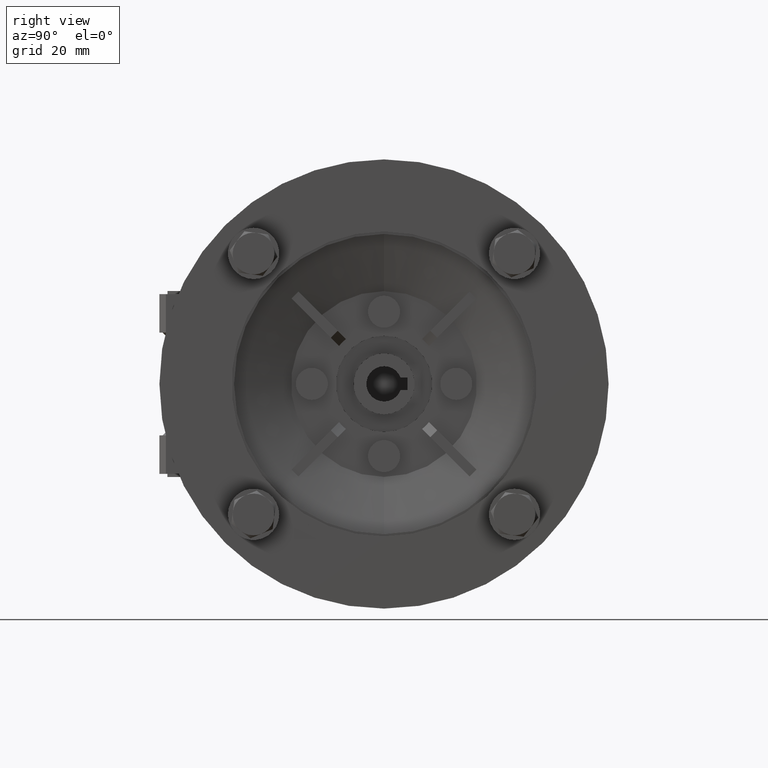
[diagram: clean part render]
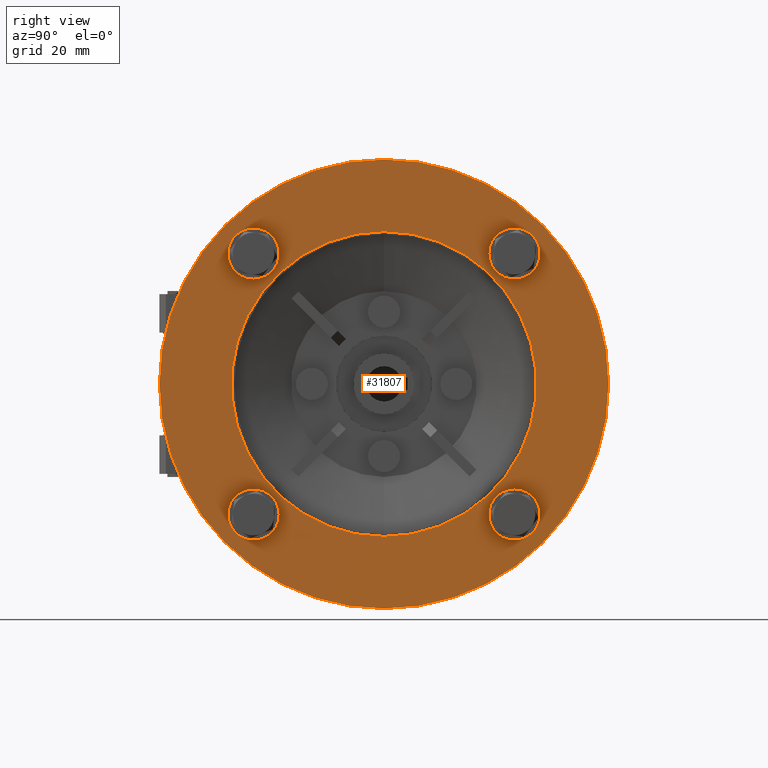
[diagram: same view with one face highlighted and labeled with its STEP entity id]
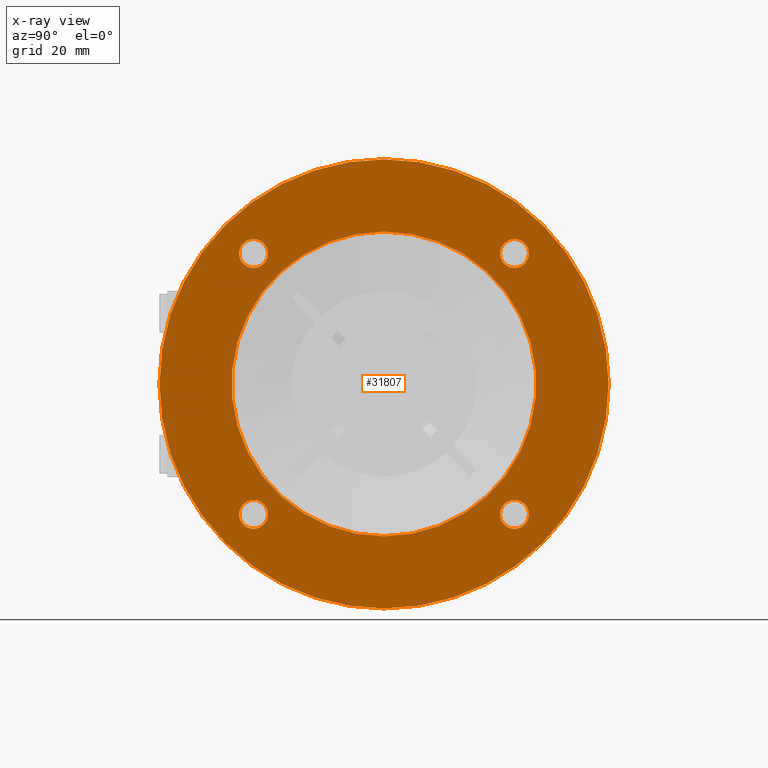
[diagram: x-ray of the same camera — body ghosted, the highlighted face saturated]
A machine part, right view. The second image highlights one B-rep face of the part: STEP entity #31807.
The next image is the same camera in x-ray: the body ghosted, the highlighted face saturated — about 0% of this face is hidden behind the body in this view.
In plain terms, the highlighted planar face has unit normal (-1, 0, 0).
Its self-contained STEP definition (entity closure, byte-faithful):
#434 = AXIS2_PLACEMENT_3D ( 'NONE', #18665, #1130, #1300 ) ;
#554 = DIRECTION ( 'NONE',  ( 1.000000000000000000, 0.000000000000000000, 0.000000000000000000 ) ) ;
#1130 = DIRECTION ( 'NONE',  ( 1.000000000000000000, 0.000000000000000000, 0.000000000000000000 ) ) ;
#1300 = DIRECTION ( 'NONE',  ( 0.000000000000000000, 0.000000000000000000, 1.000000000000000000 ) ) ;
#1329 = EDGE_CURVE ( 'NONE', #21397, #19005, #31038, .T. ) ;
#1537 = ORIENTED_EDGE ( 'NONE', *, *, #15002, .F. ) ;
#1831 = AXIS2_PLACEMENT_3D ( 'NONE', #13651, #14128, #28397 ) ;
#2310 = CARTESIAN_POINT ( 'NONE',  ( 55.00000000000000711, 70.65863991822648416, 40.65863991822649837 ) ) ;
#2782 = DIRECTION ( 'NONE',  ( 0.000000000000000000, 0.000000000000000000, 1.000000000000000000 ) ) ;
#3097 = ORIENTED_EDGE ( 'NONE', *, *, #27246, .F. ) ;
#3099 = ORIENTED_EDGE ( 'NONE', *, *, #21134, .F. ) ;
#3166 = AXIS2_PLACEMENT_3D ( 'NONE', #18507, #26451, #16246 ) ;
#3436 = DIRECTION ( 'NONE',  ( 0.000000000000000000, 0.000000000000000000, 1.000000000000000000 ) ) ;
#4056 = ORIENTED_EDGE ( 'NONE', *, *, #14325, .F. ) ;
#4446 = CARTESIAN_POINT ( 'NONE',  ( 55.00000000000000711, -10.65863991822650014, -36.15863991822649837 ) ) ;
#4650 = ORIENTED_EDGE ( 'NONE', *, *, #1329, .F. ) ;
#4712 = CARTESIAN_POINT ( 'NONE',  ( 55.00000000000000711, 30.00000000000000000, 0.000000000000000000 ) ) ;
#4901 = DIRECTION ( 'NONE',  ( 1.000000000000000000, 0.000000000000000000, 0.000000000000000000 ) ) ;
#5037 = DIRECTION ( 'NONE',  ( 1.000000000000000000, 0.000000000000000000, 0.000000000000000000 ) ) ;
#5457 = VERTEX_POINT ( 'NONE', #29016 ) ;
#5716 = DIRECTION ( 'NONE',  ( 0.000000000000000000, 0.000000000000000000, 1.000000000000000000 ) ) ;
#5776 = VERTEX_POINT ( 'NONE', #12930 ) ;
#6034 = FACE_OUTER_BOUND ( 'NONE', #11953, .T. ) ;
#6335 = VERTEX_POINT ( 'NONE', #29076 ) ;
#6854 = ORIENTED_EDGE ( 'NONE', *, *, #11203, .F. ) ;
#7069 = CIRCLE ( 'NONE', #23151, 4.499999999999997335 ) ;
#7190 = EDGE_CURVE ( 'NONE', #19005, #21397, #23393, .T. ) ;
#7370 = AXIS2_PLACEMENT_3D ( 'NONE', #4712, #5037, #7473 ) ;
#7473 = DIRECTION ( 'NONE',  ( 0.000000000000000000, 0.000000000000000000, 1.000000000000000000 ) ) ;
#8001 = FACE_BOUND ( 'NONE', #18112, .T. ) ;
#8236 = EDGE_LOOP ( 'NONE', ( #3099, #27238 ) ) ;
#8255 = DIRECTION ( 'NONE',  ( 0.000000000000000000, 0.000000000000000000, 1.000000000000000000 ) ) ;
#8404 = VERTEX_POINT ( 'NONE', #30800 ) ;
#9150 = ORIENTED_EDGE ( 'NONE', *, *, #25068, .F. ) ;
#9804 = CARTESIAN_POINT ( 'NONE',  ( 55.00000000000000711, 30.00000000000000000, 0.000000000000000000 ) ) ;
#10006 = CIRCLE ( 'NONE', #14171, 70.00000000000000000 ) ;
#10019 = VERTEX_POINT ( 'NONE', #17331 ) ;
#10323 = CIRCLE ( 'NONE', #28465, 4.499999999999997335 ) ;
#10719 = CARTESIAN_POINT ( 'NONE',  ( 55.00000000000000711, -10.65863991822650014, 36.15863991822649837 ) ) ;
#10929 = DIRECTION ( 'NONE',  ( 1.000000000000000000, 0.000000000000000000, 0.000000000000000000 ) ) ;
#11203 = EDGE_CURVE ( 'NONE', #29980, #5457, #24642, .T. ) ;
#11214 = CARTESIAN_POINT ( 'NONE',  ( 55.00000000000000711, -10.65863991822650014, 40.65863991822649837 ) ) ;
#11953 = EDGE_LOOP ( 'NONE', ( #1537, #6854 ) ) ;
#12029 = ORIENTED_EDGE ( 'NONE', *, *, #23870, .F. ) ;
#12227 = EDGE_CURVE ( 'NONE', #8404, #10019, #25145, .T. ) ;
#12248 = DIRECTION ( 'NONE',  ( -1.000000000000000000, 0.000000000000000000, 0.000000000000000000 ) ) ;
#12930 = CARTESIAN_POINT ( 'NONE',  ( 55.00000000000000711, 70.65863991822648416, 36.15863991822649837 ) ) ;
#12932 = CARTESIAN_POINT ( 'NONE',  ( 55.00000000000000711, 70.65863991822648416, -40.65863991822649837 ) ) ;
#13342 = CIRCLE ( 'NONE', #31453, 4.499999999999997335 ) ;
#13367 = FACE_BOUND ( 'NONE', #28595, .T. ) ;
#13651 = CARTESIAN_POINT ( 'NONE',  ( 55.00000000000000711, 30.00000000000000000, 0.000000000000000000 ) ) ;
#13680 = CARTESIAN_POINT ( 'NONE',  ( 55.00000000000000711, 100.0000000000000000, 0.000000000000000000 ) ) ;
#14128 = DIRECTION ( 'NONE',  ( -1.000000000000000000, 0.000000000000000000, 0.000000000000000000 ) ) ;
#14171 = AXIS2_PLACEMENT_3D ( 'NONE', #9804, #12248, #22124 ) ;
#14325 = EDGE_CURVE ( 'NONE', #10019, #8404, #15146, .T. ) ;
#15002 = EDGE_CURVE ( 'NONE', #5457, #29980, #10006, .T. ) ;
#15146 = CIRCLE ( 'NONE', #7370, 47.50000000000000000 ) ;
#15266 = CARTESIAN_POINT ( 'NONE',  ( 55.00000000000000711, 30.00000000000000711, -70.00000000000000000 ) ) ;
#15371 = VERTEX_POINT ( 'NONE', #10719 ) ;
#15757 = AXIS2_PLACEMENT_3D ( 'NONE', #13680, #28099, #5716 ) ;
#16031 = DIRECTION ( 'NONE',  ( 1.000000000000000000, 0.000000000000000000, 0.000000000000000000 ) ) ;
#16229 = CIRCLE ( 'NONE', #21407, 4.499999999999997335 ) ;
#16246 = DIRECTION ( 'NONE',  ( 0.000000000000000000, 0.000000000000000000, 1.000000000000000000 ) ) ;
#16546 = CARTESIAN_POINT ( 'NONE',  ( 55.00000000000000711, -10.65863991822650014, 45.15863991822649837 ) ) ;
#16827 = CARTESIAN_POINT ( 'NONE',  ( 55.00000000000000711, -10.65863991822650014, 40.65863991822649837 ) ) ;
#17331 = CARTESIAN_POINT ( 'NONE',  ( 55.00000000000000711, 30.00000000000000711, -47.50000000000000000 ) ) ;
#17611 = DIRECTION ( 'NONE',  ( 0.000000000000000000, 0.000000000000000000, 1.000000000000000000 ) ) ;
#18112 = EDGE_LOOP ( 'NONE', ( #9150, #19437 ) ) ;
#18507 = CARTESIAN_POINT ( 'NONE',  ( 55.00000000000000711, -10.65863991822650014, -40.65863991822649837 ) ) ;
#18665 = CARTESIAN_POINT ( 'NONE',  ( 55.00000000000000711, -10.65863991822650014, -40.65863991822649837 ) ) ;
#19005 = VERTEX_POINT ( 'NONE', #19359 ) ;
#19359 = CARTESIAN_POINT ( 'NONE',  ( 55.00000000000000711, -10.65863991822650014, -45.15863991822649837 ) ) ;
#19437 = ORIENTED_EDGE ( 'NONE', *, *, #23642, .F. ) ;
#19736 = EDGE_LOOP ( 'NONE', ( #12029, #3097 ) ) ;
#19756 = DIRECTION ( 'NONE',  ( 1.000000000000000000, 0.000000000000000000, 0.000000000000000000 ) ) ;
#20651 = FACE_BOUND ( 'NONE', #31333, .T. ) ;
#21089 = CIRCLE ( 'NONE', #23152, 4.499999999999997335 ) ;
#21134 = EDGE_CURVE ( 'NONE', #6335, #25220, #24664, .T. ) ;
#21397 = VERTEX_POINT ( 'NONE', #4446 ) ;
#21407 = AXIS2_PLACEMENT_3D ( 'NONE', #23491, #16031, #8255 ) ;
#21525 = AXIS2_PLACEMENT_3D ( 'NONE', #21580, #10929, #3436 ) ;
#21580 = CARTESIAN_POINT ( 'NONE',  ( 55.00000000000000711, 30.00000000000000000, 0.000000000000000000 ) ) ;
#21840 = DIRECTION ( 'NONE',  ( 1.000000000000000000, 0.000000000000000000, 0.000000000000000000 ) ) ;
#22124 = DIRECTION ( 'NONE',  ( 0.000000000000000000, 0.000000000000000000, 1.000000000000000000 ) ) ;
#22320 = VERTEX_POINT ( 'NONE', #23332 ) ;
#23062 = ORIENTED_EDGE ( 'NONE', *, *, #12227, .F. ) ;
#23151 = AXIS2_PLACEMENT_3D ( 'NONE', #2310, #4901, #2782 ) ;
#23152 = AXIS2_PLACEMENT_3D ( 'NONE', #30681, #30353, #28400 ) ;
#23332 = CARTESIAN_POINT ( 'NONE',  ( 55.00000000000000711, 70.65863991822648416, 45.15863991822649837 ) ) ;
#23393 = CIRCLE ( 'NONE', #3166, 4.499999999999997335 ) ;
#23491 = CARTESIAN_POINT ( 'NONE',  ( 55.00000000000000711, 70.65863991822648416, -40.65863991822649837 ) ) ;
#23642 = EDGE_CURVE ( 'NONE', #5776, #22320, #21089, .T. ) ;
#23870 = EDGE_CURVE ( 'NONE', #25694, #15371, #13342, .T. ) ;
#24431 = DIRECTION ( 'NONE',  ( 0.000000000000000000, 0.000000000000000000, 1.000000000000000000 ) ) ;
#24642 = CIRCLE ( 'NONE', #1831, 70.00000000000000000 ) ;
#24664 = CIRCLE ( 'NONE', #27254, 4.499999999999997335 ) ;
#25068 = EDGE_CURVE ( 'NONE', #22320, #5776, #7069, .T. ) ;
#25145 = CIRCLE ( 'NONE', #21525, 47.50000000000000000 ) ;
#25220 = VERTEX_POINT ( 'NONE', #28436 ) ;
#25694 = VERTEX_POINT ( 'NONE', #16546 ) ;
#25835 = FACE_BOUND ( 'NONE', #19736, .T. ) ;
#26451 = DIRECTION ( 'NONE',  ( 1.000000000000000000, 0.000000000000000000, 0.000000000000000000 ) ) ;
#27238 = ORIENTED_EDGE ( 'NONE', *, *, #29403, .F. ) ;
#27246 = EDGE_CURVE ( 'NONE', #15371, #25694, #10323, .T. ) ;
#27254 = AXIS2_PLACEMENT_3D ( 'NONE', #12932, #554, #17611 ) ;
#28088 = ORIENTED_EDGE ( 'NONE', *, *, #7190, .F. ) ;
#28099 = DIRECTION ( 'NONE',  ( -1.000000000000000000, 0.000000000000000000, 0.000000000000000000 ) ) ;
#28397 = DIRECTION ( 'NONE',  ( 0.000000000000000000, 0.000000000000000000, 1.000000000000000000 ) ) ;
#28400 = DIRECTION ( 'NONE',  ( 0.000000000000000000, 0.000000000000000000, 1.000000000000000000 ) ) ;
#28436 = CARTESIAN_POINT ( 'NONE',  ( 55.00000000000000711, 70.65863991822648416, -45.15863991822649837 ) ) ;
#28465 = AXIS2_PLACEMENT_3D ( 'NONE', #16827, #21840, #24431 ) ;
#28595 = EDGE_LOOP ( 'NONE', ( #23062, #4056 ) ) ;
#29016 = CARTESIAN_POINT ( 'NONE',  ( 55.00000000000000711, 30.00000000000000000, 70.00000000000000000 ) ) ;
#29076 = CARTESIAN_POINT ( 'NONE',  ( 55.00000000000000711, 70.65863991822648416, -36.15863991822649837 ) ) ;
#29403 = EDGE_CURVE ( 'NONE', #25220, #6335, #16229, .T. ) ;
#29659 = DIRECTION ( 'NONE',  ( 0.000000000000000000, 0.000000000000000000, 1.000000000000000000 ) ) ;
#29980 = VERTEX_POINT ( 'NONE', #15266 ) ;
#30353 = DIRECTION ( 'NONE',  ( 1.000000000000000000, 0.000000000000000000, 0.000000000000000000 ) ) ;
#30546 = FACE_BOUND ( 'NONE', #8236, .T. ) ;
#30681 = CARTESIAN_POINT ( 'NONE',  ( 55.00000000000000711, 70.65863991822648416, 40.65863991822649837 ) ) ;
#30800 = CARTESIAN_POINT ( 'NONE',  ( 55.00000000000000711, 30.00000000000000000, 47.50000000000000000 ) ) ;
#30867 = PLANE ( 'NONE',  #15757 ) ;
#31038 = CIRCLE ( 'NONE', #434, 4.499999999999997335 ) ;
#31333 = EDGE_LOOP ( 'NONE', ( #4650, #28088 ) ) ;
#31453 = AXIS2_PLACEMENT_3D ( 'NONE', #11214, #19756, #29659 ) ;
#31807 = ADVANCED_FACE ( 'NONE', ( #20651, #8001, #25835, #13367, #30546, #6034 ), #30867, .F. ) ;